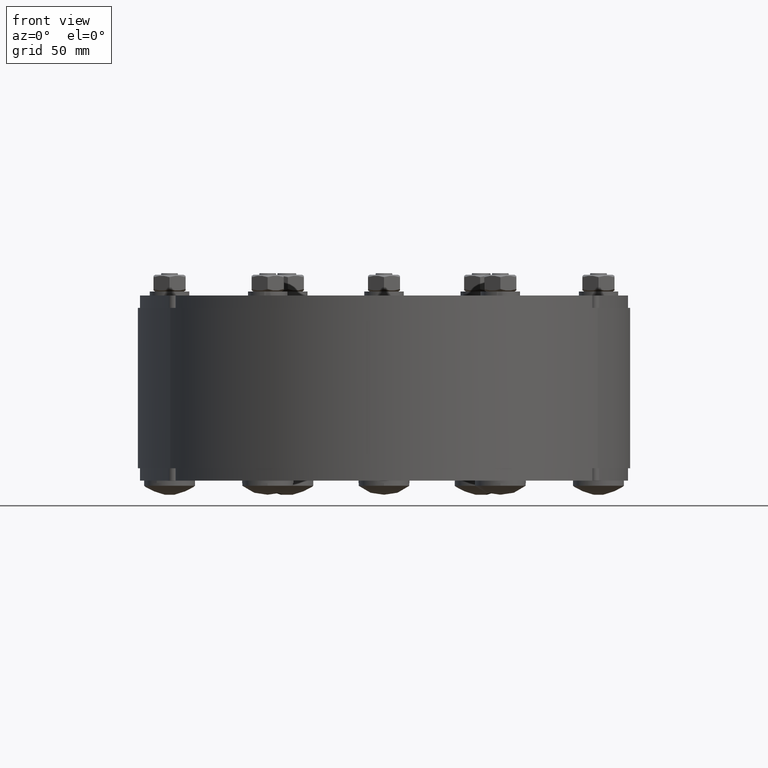
[diagram: clean part render]
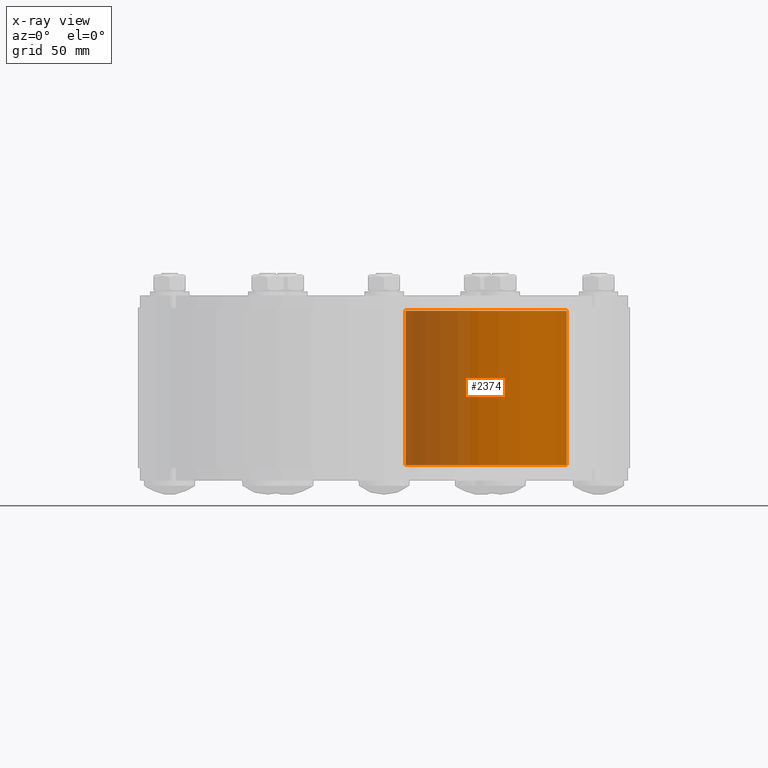
[diagram: x-ray — body ghosted, one internal face saturated and labeled with its STEP entity id]
A machine part, front view, then the same camera in x-ray: the body is ghosted and one INTERNAL B-rep face — a face not visible from any outside direction — is saturated and labeled: STEP entity #2374.
In plain terms, the highlighted cylindrical surface (partial cylindrical patch) has radius 35 mm, axis along (0, 0, 1).
Its self-contained STEP definition (entity closure, byte-faithful):
#2308=CARTESIAN_POINT('',(-31.250000000000004,-3.485297E-015,34.999999999999993));
#2309=VERTEX_POINT('',#2308);
#2316=CARTESIAN_POINT('',(-31.25,7.771561E-015,-34.999999999999993));
#2317=VERTEX_POINT('',#2316);
#2318=CARTESIAN_POINT('',(-31.250000000000004,0.0,0.0));
#2319=DIRECTION('',(1.0,0.0,0.0));
#2320=DIRECTION('',(0.0,0.0,-1.0));
#2321=AXIS2_PLACEMENT_3D('',#2318,#2319,#2320);
#2322=CIRCLE('',#2321,34.999999999999993);
#2323=EDGE_CURVE('',#2317,#2309,#2322,.T.);
#2343=CARTESIAN_POINT('',(0.0,0.0,0.0));
#2344=DIRECTION('',(1.0,0.0,0.0));
#2345=DIRECTION('',(0.0,0.0,-1.0));
#2346=AXIS2_PLACEMENT_3D('',#2343,#2344,#2345);
#2347=CYLINDRICAL_SURFACE('',#2346,34.999999999999993);
#2348=CARTESIAN_POINT('',(31.25,-3.485297E-015,34.999999999999993));
#2349=VERTEX_POINT('',#2348);
#2350=CARTESIAN_POINT('',(-31.25,-3.485297E-015,34.999999999999993));
#2351=DIRECTION('',(1.0,0.0,0.0));
#2352=VECTOR('',#2351,62.5);
#2353=LINE('',#2350,#2352);
#2354=EDGE_CURVE('',#2309,#2349,#2353,.T.);
#2355=ORIENTED_EDGE('',*,*,#2354,.T.);
#2356=CARTESIAN_POINT('',(31.25,7.771561E-015,-34.999999999999993));
#2357=VERTEX_POINT('',#2356);
#2358=CARTESIAN_POINT('',(31.25,0.0,0.0));
#2359=DIRECTION('',(1.0,0.0,0.0));
#2360=DIRECTION('',(0.0,0.0,-1.0));
#2361=AXIS2_PLACEMENT_3D('',#2358,#2359,#2360);
#2362=CIRCLE('',#2361,34.999999999999993);
#2363=EDGE_CURVE('',#2357,#2349,#2362,.T.);
#2364=ORIENTED_EDGE('',*,*,#2363,.F.);
#2365=CARTESIAN_POINT('',(-31.25,7.771561E-015,-34.999999999999993));
#2366=DIRECTION('',(1.0,0.0,0.0));
#2367=VECTOR('',#2366,62.5);
#2368=LINE('',#2365,#2367);
#2369=EDGE_CURVE('',#2317,#2357,#2368,.T.);
#2370=ORIENTED_EDGE('',*,*,#2369,.F.);
#2371=ORIENTED_EDGE('',*,*,#2323,.T.);
#2372=EDGE_LOOP('',(#2355,#2364,#2370,#2371));
#2373=FACE_OUTER_BOUND('',#2372,.T.);
#2374=ADVANCED_FACE('',(#2373),#2347,.T.);